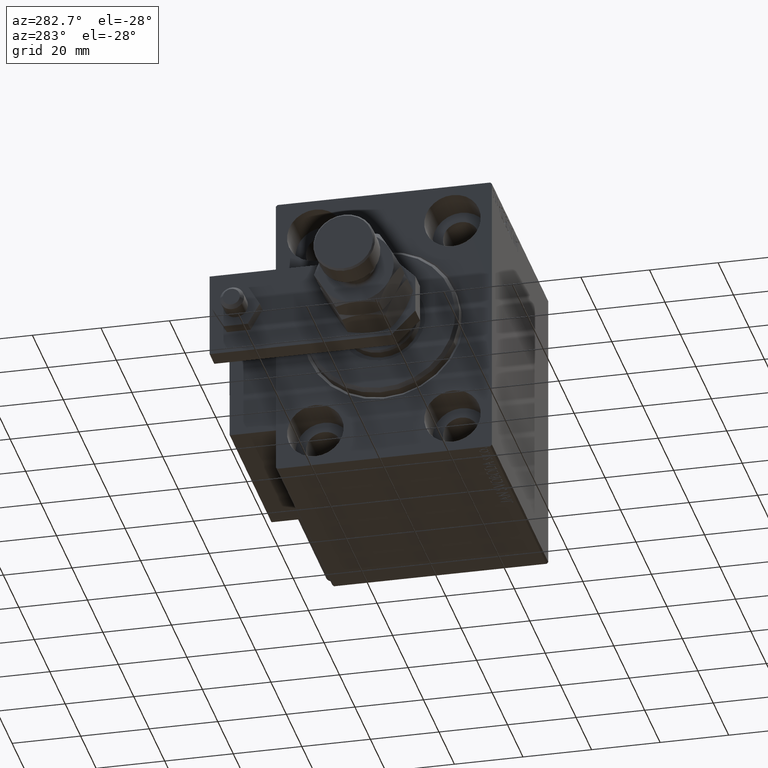
[diagram: clean part render]
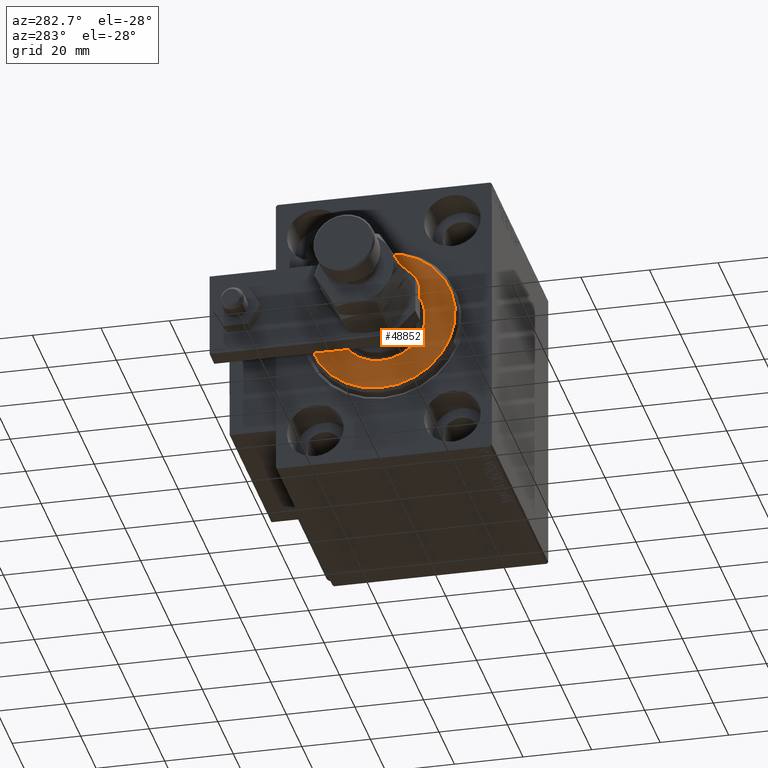
[diagram: same view with one face highlighted and labeled with its STEP entity id]
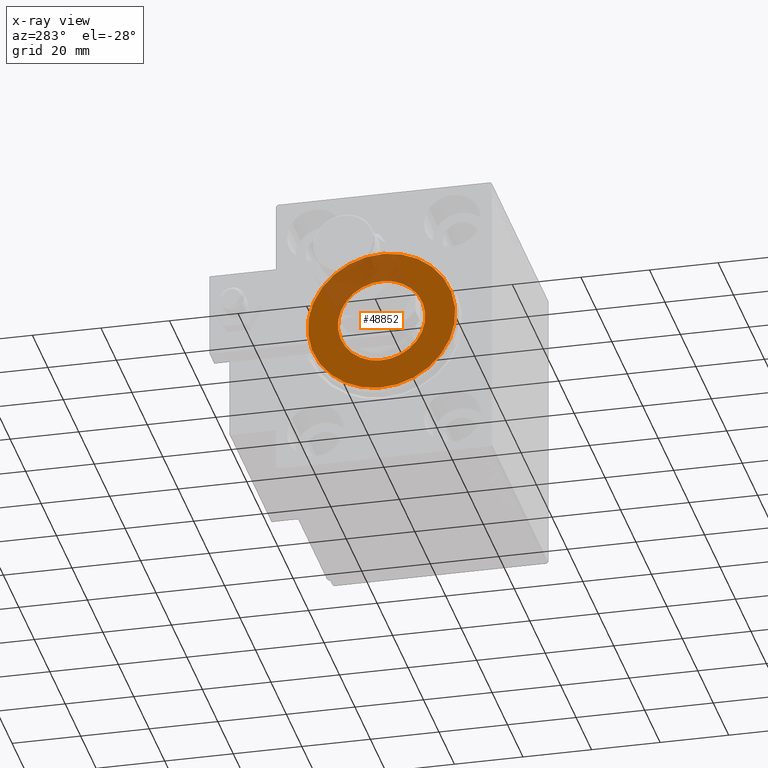
[diagram: x-ray of the same camera — body ghosted, the highlighted face saturated]
A machine part, auxiliary view. The second image highlights one B-rep face of the part: STEP entity #48852.
The next image is the same camera in x-ray: the body ghosted, the highlighted face saturated — about 24% of this face is hidden behind the body in this view.
In plain terms, the highlighted planar face has unit normal (-1, 0, 0).
Its self-contained STEP definition (entity closure, byte-faithful):
#1446 = CARTESIAN_POINT ( 'NONE',  ( 3.000000000000000000, 0.000000000000000000, 12.75000000000000000 ) ) ;
#1753 = PLANE ( 'NONE',  #23540 ) ;
#4457 = VERTEX_POINT ( 'NONE', #24747 ) ;
#6926 = CARTESIAN_POINT ( 'NONE',  ( 3.000000000000000000, 2.694222958124177598E-15, -21.50000000000000355 ) ) ;
#7188 = AXIS2_PLACEMENT_3D ( 'NONE', #46295, #22212, #38468 ) ;
#10236 = EDGE_CURVE ( 'NONE', #18057, #14809, #10419, .T. ) ;
#10419 = CIRCLE ( 'NONE', #46357, 21.50000000000000355 ) ;
#11275 = ORIENTED_EDGE ( 'NONE', *, *, #16282, .T. ) ;
#13228 = DIRECTION ( 'NONE',  ( 0.000000000000000000, 0.000000000000000000, -1.000000000000000000 ) ) ;
#13779 = FACE_OUTER_BOUND ( 'NONE', #49349, .T. ) ;
#13971 = ORIENTED_EDGE ( 'NONE', *, *, #10236, .T. ) ;
#14718 = CARTESIAN_POINT ( 'NONE',  ( 3.000000000000000000, 0.000000000000000000, 0.000000000000000000 ) ) ;
#14809 = VERTEX_POINT ( 'NONE', #6926 ) ;
#16282 = EDGE_CURVE ( 'NONE', #16819, #4457, #32397, .T. ) ;
#16819 = VERTEX_POINT ( 'NONE', #1446 ) ;
#18057 = VERTEX_POINT ( 'NONE', #46696 ) ;
#19401 = EDGE_LOOP ( 'NONE', ( #11275, #39534 ) ) ;
#22212 = DIRECTION ( 'NONE',  ( 1.000000000000000000, -0.000000000000000000, 0.000000000000000000 ) ) ;
#23540 = AXIS2_PLACEMENT_3D ( 'NONE', #46222, #33950, #34462 ) ;
#24747 = CARTESIAN_POINT ( 'NONE',  ( 3.000000000000000000, 1.561424668912874914E-15, -12.75000000000000000 ) ) ;
#28072 = CIRCLE ( 'NONE', #7188, 21.50000000000000355 ) ;
#28472 = DIRECTION ( 'NONE',  ( -1.000000000000000000, 0.000000000000000000, -0.000000000000000000 ) ) ;
#31290 = EDGE_CURVE ( 'NONE', #14809, #18057, #28072, .T. ) ;
#31888 = DIRECTION ( 'NONE',  ( 0.000000000000000000, 0.000000000000000000, -1.000000000000000000 ) ) ;
#32397 = CIRCLE ( 'NONE', #41610, 12.75000000000000000 ) ;
#33393 = CARTESIAN_POINT ( 'NONE',  ( 3.000000000000000000, 0.000000000000000000, 0.000000000000000000 ) ) ;
#33645 = EDGE_CURVE ( 'NONE', #4457, #16819, #48196, .T. ) ;
#33689 = FACE_BOUND ( 'NONE', #19401, .T. ) ;
#33864 = DIRECTION ( 'NONE',  ( 1.000000000000000000, -0.000000000000000000, 0.000000000000000000 ) ) ;
#33950 = DIRECTION ( 'NONE',  ( 1.000000000000000000, -0.000000000000000000, 0.000000000000000000 ) ) ;
#34462 = DIRECTION ( 'NONE',  ( 0.000000000000000000, 0.000000000000000000, -1.000000000000000000 ) ) ;
#36350 = CARTESIAN_POINT ( 'NONE',  ( 3.000000000000000000, 0.000000000000000000, 0.000000000000000000 ) ) ;
#38468 = DIRECTION ( 'NONE',  ( 0.000000000000000000, 0.000000000000000000, -1.000000000000000000 ) ) ;
#39534 = ORIENTED_EDGE ( 'NONE', *, *, #33645, .T. ) ;
#41610 = AXIS2_PLACEMENT_3D ( 'NONE', #36350, #28472, #31888 ) ;
#46222 = CARTESIAN_POINT ( 'NONE',  ( 3.000000000000000000, 0.000000000000000000, 0.000000000000000000 ) ) ;
#46295 = CARTESIAN_POINT ( 'NONE',  ( 3.000000000000000000, 0.000000000000000000, 0.000000000000000000 ) ) ;
#46357 = AXIS2_PLACEMENT_3D ( 'NONE', #14718, #33864, #50556 ) ;
#46696 = CARTESIAN_POINT ( 'NONE',  ( 3.000000000000000000, 0.000000000000000000, 21.50000000000000355 ) ) ;
#48040 = ORIENTED_EDGE ( 'NONE', *, *, #31290, .T. ) ;
#48196 = CIRCLE ( 'NONE', #50695, 12.75000000000000000 ) ;
#48852 = ADVANCED_FACE ( 'NONE', ( #13779, #33689 ), #1753, .T. ) ;
#49340 = DIRECTION ( 'NONE',  ( -1.000000000000000000, 0.000000000000000000, -0.000000000000000000 ) ) ;
#49349 = EDGE_LOOP ( 'NONE', ( #13971, #48040 ) ) ;
#50556 = DIRECTION ( 'NONE',  ( 0.000000000000000000, 0.000000000000000000, -1.000000000000000000 ) ) ;
#50695 = AXIS2_PLACEMENT_3D ( 'NONE', #33393, #49340, #13228 ) ;